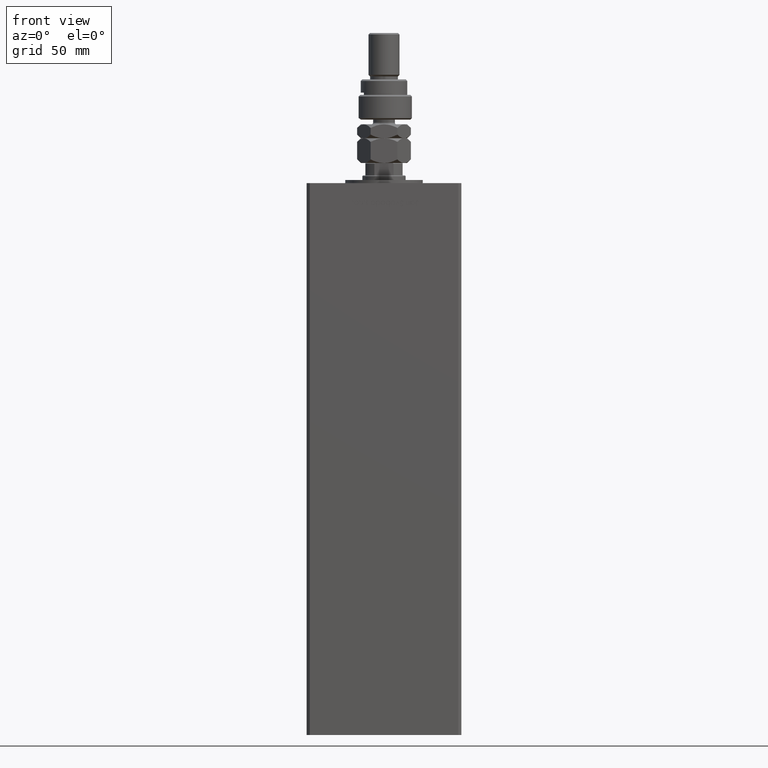
[diagram: clean part render]
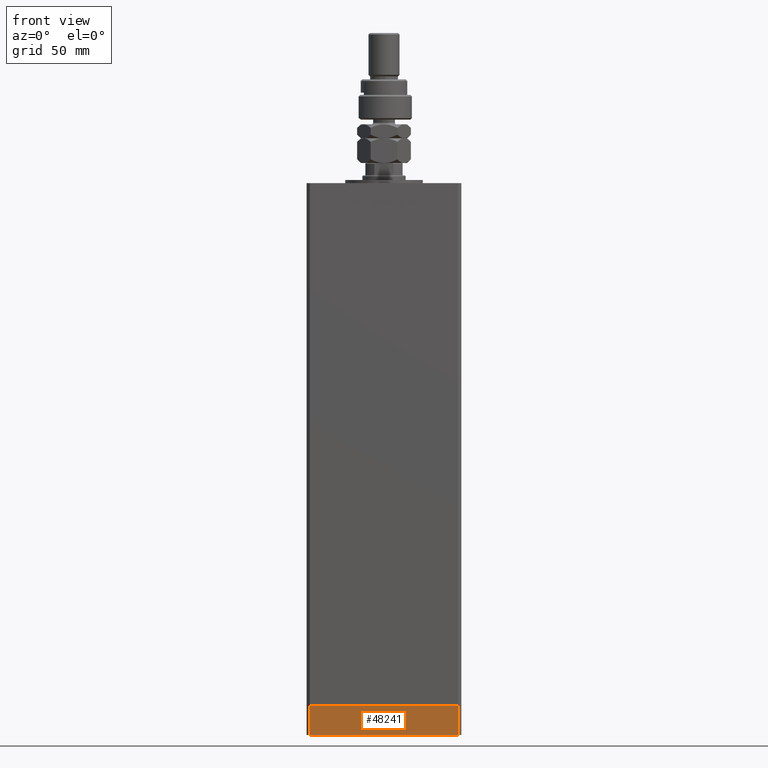
[diagram: same view with one face highlighted and labeled with its STEP entity id]
A machine part, front view. The second image highlights one B-rep face of the part: STEP entity #48241.
In plain terms, the highlighted planar face has unit normal (0, -1, -0).
Its self-contained STEP definition (entity closure, byte-faithful):
#711 = CARTESIAN_POINT ( 'NONE',  ( -47.99999999999999289, -43.50000000000001421, -19.00000000000000000 ) ) ;
#721 = EDGE_CURVE ( 'NONE', #39861, #10390, #16877, .T. ) ;
#745 = VERTEX_POINT ( 'NONE', #54736 ) ;
#1160 = VECTOR ( 'NONE', #7055, 1000.000000000000000 ) ;
#1440 = CARTESIAN_POINT ( 'NONE',  ( -47.99999999999999289, -43.50000000000001421, -19.00000000000000000 ) ) ;
#1523 = DIRECTION ( 'NONE',  ( 0.000000000000000000, -0.000000000000000000, -1.000000000000000000 ) ) ;
#3656 = ORIENTED_EDGE ( 'NONE', *, *, #47619, .T. ) ;
#6411 = LINE ( 'NONE', #1440, #9232 ) ;
#7055 = DIRECTION ( 'NONE',  ( 1.000000000000000000, 0.000000000000000000, 0.000000000000000000 ) ) ;
#7106 = VECTOR ( 'NONE', #12723, 1000.000000000000000 ) ;
#7415 = EDGE_CURVE ( 'NONE', #745, #10390, #16509, .T. ) ;
#8888 = ORIENTED_EDGE ( 'NONE', *, *, #721, .T. ) ;
#9232 = VECTOR ( 'NONE', #27542, 1000.000000000000000 ) ;
#10390 = VERTEX_POINT ( 'NONE', #42482 ) ;
#12723 = DIRECTION ( 'NONE',  ( 0.000000000000000000, 0.000000000000000000, 1.000000000000000000 ) ) ;
#13375 = EDGE_CURVE ( 'NONE', #47489, #745, #6411, .T. ) ;
#16509 = LINE ( 'NONE', #24293, #1160 ) ;
#16877 = LINE ( 'NONE', #38053, #7106 ) ;
#17534 = CARTESIAN_POINT ( 'NONE',  ( -47.99999999999999289, -43.50000000000001421, -19.00000000000000000 ) ) ;
#18480 = PLANE ( 'NONE',  #28037 ) ;
#22108 = FACE_OUTER_BOUND ( 'NONE', #54054, .T. ) ;
#24293 = CARTESIAN_POINT ( 'NONE',  ( -47.99999999999999289, -43.50000000000001421, 0.000000000000000000 ) ) ;
#27527 = ORIENTED_EDGE ( 'NONE', *, *, #13375, .F. ) ;
#27542 = DIRECTION ( 'NONE',  ( 0.000000000000000000, 0.000000000000000000, 1.000000000000000000 ) ) ;
#28037 = AXIS2_PLACEMENT_3D ( 'NONE', #711, #39123, #1523 ) ;
#36119 = CARTESIAN_POINT ( 'NONE',  ( 47.99999999999999289, -43.50000000000001421, -19.00000000000000000 ) ) ;
#38053 = CARTESIAN_POINT ( 'NONE',  ( 47.99999999999999289, -43.50000000000001421, -19.00000000000000000 ) ) ;
#38715 = LINE ( 'NONE', #17534, #51116 ) ;
#39123 = DIRECTION ( 'NONE',  ( 0.000000000000000000, -1.000000000000000000, 0.000000000000000000 ) ) ;
#39861 = VERTEX_POINT ( 'NONE', #36119 ) ;
#42482 = CARTESIAN_POINT ( 'NONE',  ( 47.99999999999999289, -43.50000000000001421, 0.000000000000000000 ) ) ;
#43152 = DIRECTION ( 'NONE',  ( 1.000000000000000000, 0.000000000000000000, 0.000000000000000000 ) ) ;
#45949 = CARTESIAN_POINT ( 'NONE',  ( -47.99999999999999289, -43.50000000000001421, -19.00000000000000000 ) ) ;
#47489 = VERTEX_POINT ( 'NONE', #45949 ) ;
#47619 = EDGE_CURVE ( 'NONE', #47489, #39861, #38715, .T. ) ;
#48241 = ADVANCED_FACE ( 'NONE', ( #22108 ), #18480, .T. ) ;
#51116 = VECTOR ( 'NONE', #43152, 1000.000000000000000 ) ;
#53222 = ORIENTED_EDGE ( 'NONE', *, *, #7415, .F. ) ;
#54054 = EDGE_LOOP ( 'NONE', ( #53222, #27527, #3656, #8888 ) ) ;
#54736 = CARTESIAN_POINT ( 'NONE',  ( -47.99999999999999289, -43.50000000000001421, 0.000000000000000000 ) ) ;